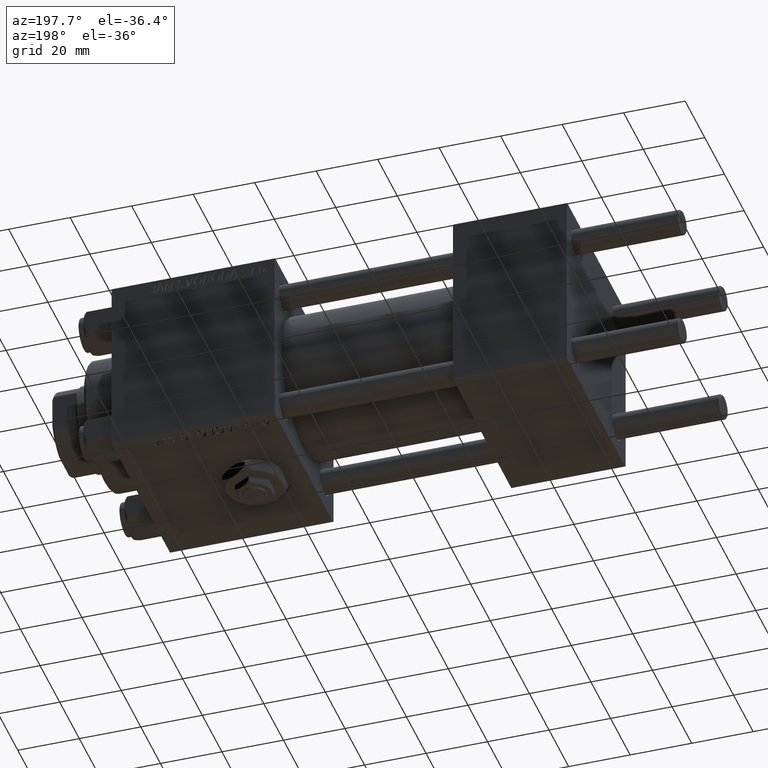
[diagram: clean part render]
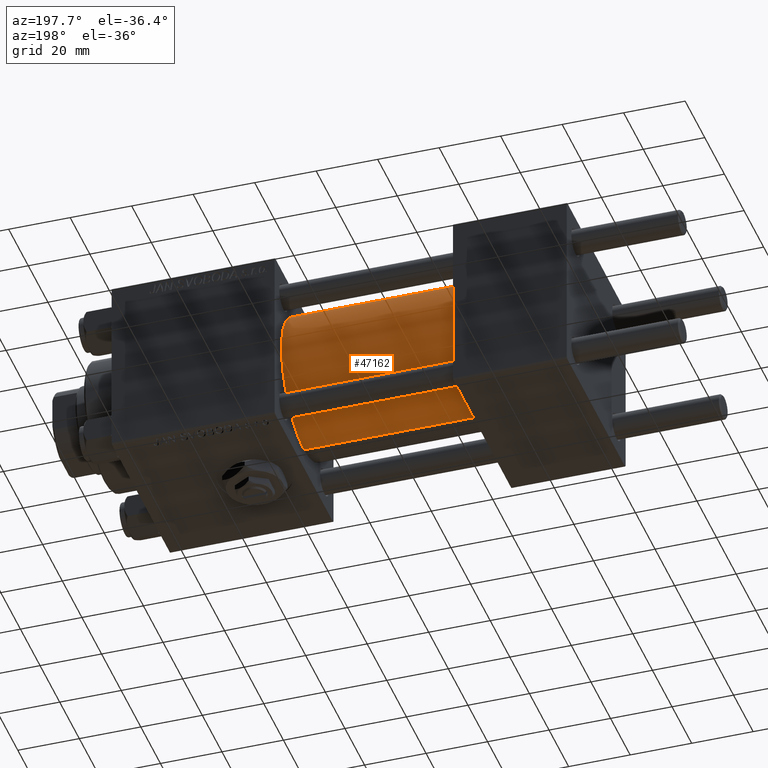
[diagram: same view with one face highlighted and labeled with its STEP entity id]
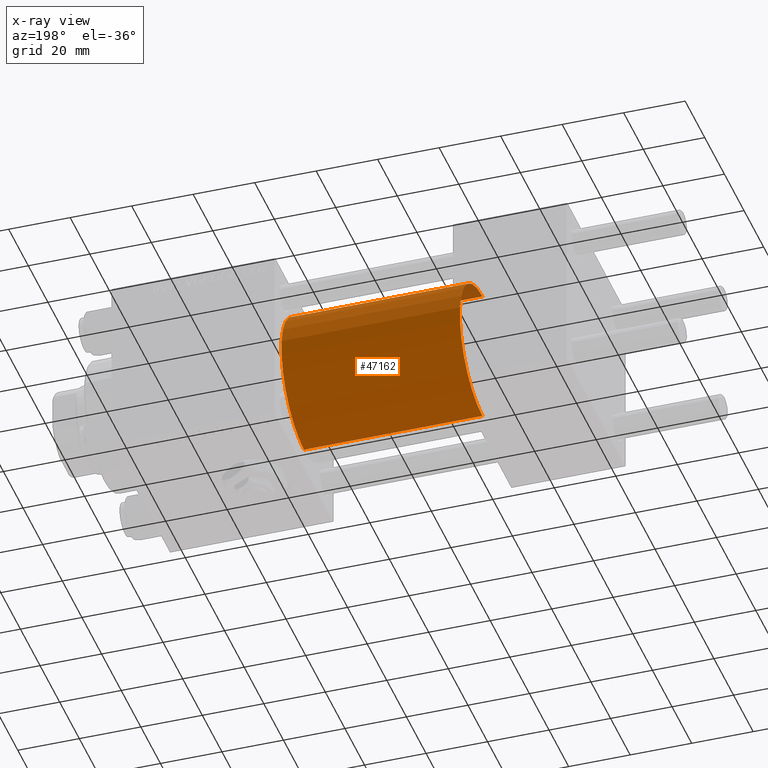
[diagram: x-ray of the same camera — body ghosted, the highlighted face saturated]
A machine part, auxiliary view. The second image highlights one B-rep face of the part: STEP entity #47162.
The next image is the same camera in x-ray: the body ghosted, the highlighted face saturated — about 1% of this face is hidden behind the body in this view.
In plain terms, the highlighted cylindrical surface (partial cylindrical patch) has radius 23 mm, axis along (-1, -0, -0).
Its self-contained STEP definition (entity closure, byte-faithful):
#923 = CARTESIAN_POINT ( 'NONE',  ( 95.00000000000000000, 0.000000000000000000, 0.000000000000000000 ) ) ;
#4836 = DIRECTION ( 'NONE',  ( 0.000000000000000000, 0.000000000000000000, -1.000000000000000000 ) ) ;
#6970 = VERTEX_POINT ( 'NONE', #17798 ) ;
#7574 = EDGE_CURVE ( 'NONE', #6970, #26238, #42530, .T. ) ;
#7619 = DIRECTION ( 'NONE',  ( -1.000000000000000000, -0.000000000000000000, -0.000000000000000000 ) ) ;
#8133 = CARTESIAN_POINT ( 'NONE',  ( 95.00000000000000000, 0.000000000000000000, 23.00000000000000000 ) ) ;
#8514 = ORIENTED_EDGE ( 'NONE', *, *, #15607, .T. ) ;
#8756 = DIRECTION ( 'NONE',  ( 1.000000000000000000, 0.000000000000000000, 0.000000000000000000 ) ) ;
#9805 = DIRECTION ( 'NONE',  ( -1.000000000000000000, -0.000000000000000000, -0.000000000000000000 ) ) ;
#9902 = ORIENTED_EDGE ( 'NONE', *, *, #7574, .F. ) ;
#10435 = VERTEX_POINT ( 'NONE', #24394 ) ;
#12279 = VECTOR ( 'NONE', #9805, 1000.000000000000000 ) ;
#15607 = EDGE_CURVE ( 'NONE', #32035, #10435, #21155, .T. ) ;
#16132 = AXIS2_PLACEMENT_3D ( 'NONE', #18285, #22207, #45429 ) ;
#17798 = CARTESIAN_POINT ( 'NONE',  ( 95.00000000000000000, 2.816687638038911957E-15, -23.00000000000000000 ) ) ;
#18285 = CARTESIAN_POINT ( 'NONE',  ( 37.00000000000000000, 0.000000000000000000, 0.000000000000000000 ) ) ;
#21155 = CIRCLE ( 'NONE', #16132, 23.00000000000000000 ) ;
#21598 = EDGE_CURVE ( 'NONE', #26238, #10435, #43355, .T. ) ;
#22207 = DIRECTION ( 'NONE',  ( 1.000000000000000000, -0.000000000000000000, 0.000000000000000000 ) ) ;
#23136 = EDGE_LOOP ( 'NONE', ( #9902, #41834, #8514, #37759 ) ) ;
#23838 = CARTESIAN_POINT ( 'NONE',  ( 37.00000000000000000, 2.816687638038911957E-15, -23.00000000000000000 ) ) ;
#24394 = CARTESIAN_POINT ( 'NONE',  ( 37.00000000000000000, 0.000000000000000000, 23.00000000000000000 ) ) ;
#26238 = VERTEX_POINT ( 'NONE', #37317 ) ;
#28165 = CYLINDRICAL_SURFACE ( 'NONE', #34862, 23.00000000000000000 ) ;
#28931 = CARTESIAN_POINT ( 'NONE',  ( 95.00000000000000000, 0.000000000000000000, 0.000000000000000000 ) ) ;
#29612 = CARTESIAN_POINT ( 'NONE',  ( 95.00000000000000000, 2.816687638038911957E-15, -23.00000000000000000 ) ) ;
#30858 = AXIS2_PLACEMENT_3D ( 'NONE', #923, #8756, #4836 ) ;
#32035 = VERTEX_POINT ( 'NONE', #23838 ) ;
#34862 = AXIS2_PLACEMENT_3D ( 'NONE', #28931, #48502, #44836 ) ;
#37317 = CARTESIAN_POINT ( 'NONE',  ( 95.00000000000000000, 0.000000000000000000, 23.00000000000000000 ) ) ;
#37563 = VECTOR ( 'NONE', #7619, 1000.000000000000000 ) ;
#37759 = ORIENTED_EDGE ( 'NONE', *, *, #21598, .F. ) ;
#41834 = ORIENTED_EDGE ( 'NONE', *, *, #43947, .T. ) ;
#42530 = CIRCLE ( 'NONE', #30858, 23.00000000000000000 ) ;
#43355 = LINE ( 'NONE', #8133, #37563 ) ;
#43947 = EDGE_CURVE ( 'NONE', #6970, #32035, #45011, .T. ) ;
#44836 = DIRECTION ( 'NONE',  ( 0.000000000000000000, 0.000000000000000000, 1.000000000000000000 ) ) ;
#45011 = LINE ( 'NONE', #29612, #12279 ) ;
#45102 = FACE_OUTER_BOUND ( 'NONE', #23136, .T. ) ;
#45429 = DIRECTION ( 'NONE',  ( 0.000000000000000000, 0.000000000000000000, 1.000000000000000000 ) ) ;
#47162 = ADVANCED_FACE ( 'NONE', ( #45102 ), #28165, .T. ) ;
#48502 = DIRECTION ( 'NONE',  ( -1.000000000000000000, -0.000000000000000000, -0.000000000000000000 ) ) ;